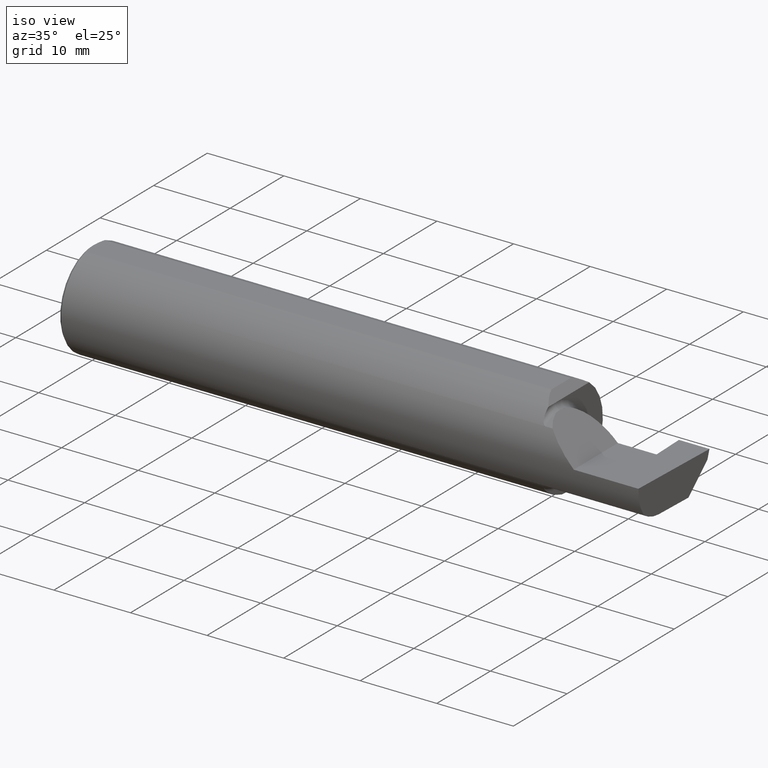
[diagram: clean part render]
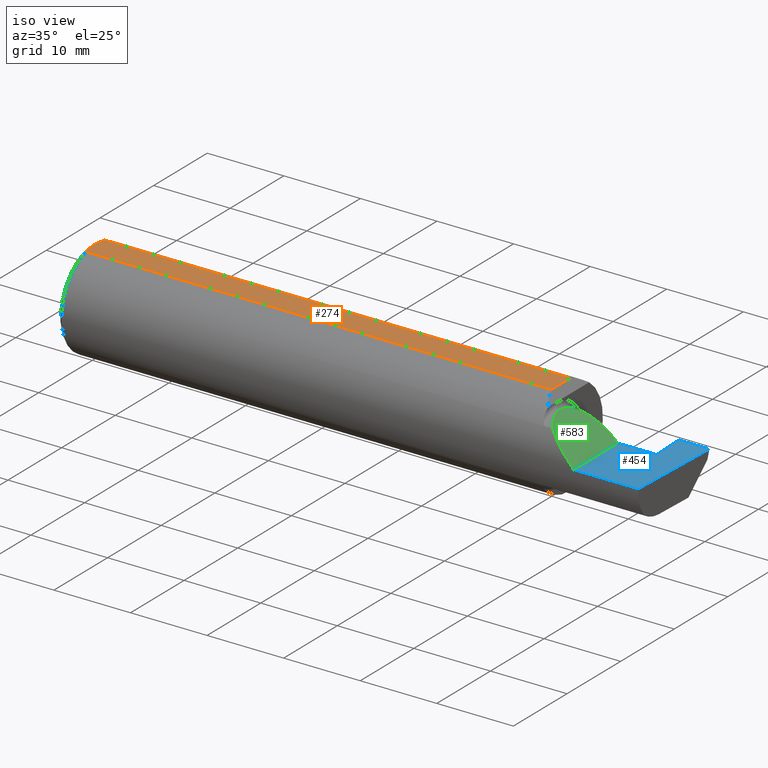
[diagram: same view with three faces highlighted in distinct colors, each labeled with its STEP entity id]
A machine part, iso view with three faces highlighted in distinct colors.
Their STEP definitions:

[orange] entity #274 — the highlighted planar face has unit normal (0, -0, 1).
#14 = LINE ( 'NONE', #353, #471 ) ;
#67 = EDGE_CURVE ( 'NONE', #281, #340, #345, .T. ) ;
#78 = CARTESIAN_POINT ( 'NONE',  ( 0.004999999999999471013, 5.665694022114171174E-17, 0.2398500000000000076 ) ) ;
#87 = DIRECTION ( 'NONE',  ( 1.000000000000000000, 0.000000000000000000, 0.000000000000000000 ) ) ;
#88 = ORIENTED_EDGE ( 'NONE', *, *, #735, .T. ) ;
#97 = DIRECTION ( 'NONE',  ( 0.000000000000000000, -0.000000000000000000, 1.000000000000000000 ) ) ;
#98 = ORIENTED_EDGE ( 'NONE', *, *, #193, .T. ) ;
#130 = CARTESIAN_POINT ( 'NONE',  ( 2.410150000000002013, 0.06997856814768359246, 0.2398500000000000076 ) ) ;
#136 = B_SPLINE_CURVE_WITH_KNOTS ( 'NONE', 3,
 ( #78, #356, #605, #665, #338, #521 ),
 .UNSPECIFIED., .F., .F.,
 ( 4, 2, 4 ),
 ( 0.007845223120669340966, 0.008734561288375079086, 0.009623899456080817205 ),
 .UNSPECIFIED. ) ;
#146 = CARTESIAN_POINT ( 'NONE',  ( 3.000000000000000444, -0.2498499999999999888, 0.2398500000000000076 ) ) ;
#173 = CARTESIAN_POINT ( 'NONE',  ( 0.004999999999999748569, 0.01185123536186986730, 0.2398500000000000354 ) ) ;
#193 = EDGE_CURVE ( 'NONE', #215, #281, #450, .T. ) ;
#210 = EDGE_LOOP ( 'NONE', ( #730, #98, #410, #88, #463 ) ) ;
#215 = VERTEX_POINT ( 'NONE', #130 ) ;
#238 = VECTOR ( 'NONE', #385, 39.37007874015748143 ) ;
#274 = ADVANCED_FACE ( 'NONE', ( #607 ), #339, .T. ) ;
#281 = VERTEX_POINT ( 'NONE', #480 ) ;
#312 = EDGE_CURVE ( 'NONE', #404, #630, #465, .T. ) ;
#321 = CARTESIAN_POINT ( 'NONE',  ( 0.004999999999999471013, 5.665694022114171174E-17, 0.2398500000000000076 ) ) ;
#338 = CARTESIAN_POINT ( 'NONE',  ( 0.01180609504125294286, -0.05857511741890332468, 0.2398500000000000354 ) ) ;
#339 = PLANE ( 'NONE',  #392 ) ;
#340 = VERTEX_POINT ( 'NONE', #354 ) ;
#345 = B_SPLINE_CURVE_WITH_KNOTS ( 'NONE', 3,
 ( #741, #629, #746, #632, #173, #321 ),
 .UNSPECIFIED., .F., .F.,
 ( 4, 2, 4 ),
 ( 0.006064768674679246394, 0.006954995897674293680, 0.007845223120669340966 ),
 .UNSPECIFIED. ) ;
#353 = CARTESIAN_POINT ( 'NONE',  ( 2.410150000000002013, -0.2498499999999999888, 0.2398500000000000076 ) ) ;
#354 = CARTESIAN_POINT ( 'NONE',  ( 0.004999999999999471013, 5.665694022114171174E-17, 0.2398500000000000076 ) ) ;
#356 = CARTESIAN_POINT ( 'NONE',  ( 0.004999999999999737293, -0.01183939972798750233, 0.2398500000000000631 ) ) ;
#385 = DIRECTION ( 'NONE',  ( -1.000000000000000000, -0.000000000000000000, -0.000000000000000000 ) ) ;
#392 = AXIS2_PLACEMENT_3D ( 'NONE', #146, #97, #653 ) ;
#404 = VERTEX_POINT ( 'NONE', #745 ) ;
#410 = ORIENTED_EDGE ( 'NONE', *, *, #67, .T. ) ;
#450 = LINE ( 'NONE', #507, #238 ) ;
#463 = ORIENTED_EDGE ( 'NONE', *, *, #312, .T. ) ;
#465 = LINE ( 'NONE', #714, #708 ) ;
#471 = VECTOR ( 'NONE', #602, 39.37007874015748143 ) ;
#480 = CARTESIAN_POINT ( 'NONE',  ( 0.01499999999999998036, 0.06997856814768359246, 0.2398500000000000076 ) ) ;
#507 = CARTESIAN_POINT ( 'NONE',  ( 0.000000000000000000, 0.06997856814768359246, 0.2398500000000000076 ) ) ;
#521 = CARTESIAN_POINT ( 'NONE',  ( 0.01499999999999999944, -0.06997856814768359246, 0.2398500000000000076 ) ) ;
#602 = DIRECTION ( 'NONE',  ( 0.000000000000000000, -1.000000000000000000, 0.000000000000000000 ) ) ;
#605 = CARTESIAN_POINT ( 'NONE',  ( 0.005880636388018714231, -0.02358947477502553597, 0.2398500000000000354 ) ) ;
#607 = FACE_OUTER_BOUND ( 'NONE', #210, .T. ) ;
#629 = CARTESIAN_POINT ( 'NONE',  ( 0.01181966702888962925, 0.05862357455657477012, 0.2398500000000000631 ) ) ;
#630 = VERTEX_POINT ( 'NONE', #642 ) ;
#632 = CARTESIAN_POINT ( 'NONE',  ( 0.005899890343961325216, 0.02378560009989248020, 0.2398500000000000076 ) ) ;
#642 = CARTESIAN_POINT ( 'NONE',  ( 2.410150000000002013, -0.06997856814768374512, 0.2398500000000000076 ) ) ;
#653 = DIRECTION ( 'NONE',  ( 1.000000000000000000, 0.000000000000000000, -0.000000000000000000 ) ) ;
#665 = CARTESIAN_POINT ( 'NONE',  ( 0.009274236576542584445, -0.04692405468904851940, 0.2398500000000000076 ) ) ;
#708 = VECTOR ( 'NONE', #87, 39.37007874015748143 ) ;
#714 = CARTESIAN_POINT ( 'NONE',  ( 0.000000000000000000, -0.06997856814768359246, 0.2398500000000000076 ) ) ;
#730 = ORIENTED_EDGE ( 'NONE', *, *, #768, .F. ) ;
#735 = EDGE_CURVE ( 'NONE', #340, #404, #136, .T. ) ;
#741 = CARTESIAN_POINT ( 'NONE',  ( 0.01499999999999998036, 0.06997856814768359246, 0.2398500000000000076 ) ) ;
#745 = CARTESIAN_POINT ( 'NONE',  ( 0.01499999999999999944, -0.06997856814768359246, 0.2398500000000000076 ) ) ;
#746 = CARTESIAN_POINT ( 'NONE',  ( 0.009312860630924749139, 0.04712480857212033442, 0.2398500000000000354 ) ) ;
#768 = EDGE_CURVE ( 'NONE', #215, #630, #14, .T. ) ;

[blue] entity #454 — the highlighted planar face has unit normal (-0, 0, -1).
#37 = CARTESIAN_POINT ( 'NONE',  ( 2.843000000000000416, 0.07414999999999999369, 6.735556484410550145E-17 ) ) ;
#56 = CARTESIAN_POINT ( 'NONE',  ( 2.650000000000000355, -0.2498499999999999610, 4.286263797015727350E-17 ) ) ;
#71 = DIRECTION ( 'NONE',  ( 1.000000000000000000, 0.000000000000000000, 0.000000000000000000 ) ) ;
#93 = LINE ( 'NONE', #283, #674 ) ;
#103 = VERTEX_POINT ( 'NONE', #754 ) ;
#107 = CARTESIAN_POINT ( 'NONE',  ( 3.000000000000000444, -0.2500000000000000555, 0.000000000000000000 ) ) ;
#111 = ORIENTED_EDGE ( 'NONE', *, *, #580, .F. ) ;
#122 = DIRECTION ( 'NONE',  ( 0.03487823687994805882, -0.9993915692020550745, -4.023838201466321508E-18 ) ) ;
#140 = ORIENTED_EDGE ( 'NONE', *, *, #777, .F. ) ;
#198 = CARTESIAN_POINT ( 'NONE',  ( 2.860520154598983122, -0.2548677727907585067, 1.708135462159229949E-17 ) ) ;
#206 = VECTOR ( 'NONE', #71, 39.37007874015748143 ) ;
#224 = CARTESIAN_POINT ( 'NONE',  ( 2.650000000000000355, -0.2500000000000000555, 4.286263797015727350E-17 ) ) ;
#248 = DIRECTION ( 'NONE',  ( -1.000000000000000000, 0.000000000000000000, 1.224646799147351482E-16 ) ) ;
#253 = CARTESIAN_POINT ( 'NONE',  ( 3.000000000000000444, 0.2471499999999999531, -7.549931466865102584E-16 ) ) ;
#260 = CARTESIAN_POINT ( 'NONE',  ( 2.849037608447156700, 0.07414999999999992430, -7.830269480060695625E-18 ) ) ;
#262 = EDGE_CURVE ( 'NONE', #352, #441, #266, .T. ) ;
#266 = LINE ( 'NONE', #647, #206 ) ;
#282 = LINE ( 'NONE', #224, #724 ) ;
#283 = CARTESIAN_POINT ( 'NONE',  ( 2.982660284539054629, -0.2493944837933358694, 2.123502703737254632E-18 ) ) ;
#301 = DIRECTION ( 'NONE',  ( -1.224646799147351482E-16, 0.000000000000000000, -1.000000000000000000 ) ) ;
#305 = EDGE_LOOP ( 'NONE', ( #111, #400, #140, #420, #547, #363, #496 ) ) ;
#331 = CARTESIAN_POINT ( 'NONE',  ( 4.499279347985559139E-32, -0.2498499999999999610, 3.673940397442053459E-16 ) ) ;
#350 = EDGE_CURVE ( 'NONE', #616, #428, #93, .T. ) ;
#352 = VERTEX_POINT ( 'NONE', #666 ) ;
#363 = ORIENTED_EDGE ( 'NONE', *, *, #262, .F. ) ;
#400 = ORIENTED_EDGE ( 'NONE', *, *, #350, .T. ) ;
#408 = VECTOR ( 'NONE', #122, 39.37007874015748854 ) ;
#411 = DIRECTION ( 'NONE',  ( -0.000000000000000000, 1.000000000000000000, -0.000000000000000000 ) ) ;
#420 = ORIENTED_EDGE ( 'NONE', *, *, #555, .T. ) ;
#428 = VERTEX_POINT ( 'NONE', #253 ) ;
#433 = PLANE ( 'NONE',  #762 ) ;
#437 = DIRECTION ( 'NONE',  ( 1.000000000000000000, -0.000000000000000000, -0.000000000000000000 ) ) ;
#441 = VERTEX_POINT ( 'NONE', #37 ) ;
#446 = VECTOR ( 'NONE', #722, 39.37007874015748143 ) ;
#454 = ADVANCED_FACE ( 'NONE', ( #679 ), #433, .F. ) ;
#477 = VERTEX_POINT ( 'NONE', #56 ) ;
#496 = ORIENTED_EDGE ( 'NONE', *, *, #723, .F. ) ;
#535 = LINE ( 'NONE', #770, #446 ) ;
#547 = ORIENTED_EDGE ( 'NONE', *, *, #651, .T. ) ;
#555 = EDGE_CURVE ( 'NONE', #103, #621, #646, .T. ) ;
#578 = CARTESIAN_POINT ( 'NONE',  ( 2.982644377562602589, -0.2498499999999999610, 1.813681607540488003E-17 ) ) ;
#580 = EDGE_CURVE ( 'NONE', #616, #477, #760, .T. ) ;
#586 = VECTOR ( 'NONE', #437, 39.37007874015748143 ) ;
#616 = VERTEX_POINT ( 'NONE', #578 ) ;
#621 = VERTEX_POINT ( 'NONE', #260 ) ;
#646 = LINE ( 'NONE', #198, #408 ) ;
#647 = CARTESIAN_POINT ( 'NONE',  ( 2.450000000000000178, 0.07414999999999997982, 6.735557395310432655E-17 ) ) ;
#651 = EDGE_CURVE ( 'NONE', #621, #441, #535, .T. ) ;
#666 = CARTESIAN_POINT ( 'NONE',  ( 2.650000000000000355, 0.07414999999999997982, 4.286263797015727350E-17 ) ) ;
#674 = VECTOR ( 'NONE', #793, 39.37007874015748143 ) ;
#679 = FACE_OUTER_BOUND ( 'NONE', #305, .T. ) ;
#705 = DIRECTION ( 'NONE',  ( -1.000000000000000000, -0.000000000000000000, -0.000000000000000000 ) ) ;
#722 = DIRECTION ( 'NONE',  ( -1.000000000000000000, 2.393920122924607177E-16, 1.224646799147351482E-16 ) ) ;
#723 = EDGE_CURVE ( 'NONE', #477, #352, #282, .T. ) ;
#724 = VECTOR ( 'NONE', #411, 39.37007874015748143 ) ;
#740 = CARTESIAN_POINT ( 'NONE',  ( 2.825000000000000178, 0.2471500000000000086, -3.306546357697639493E-19 ) ) ;
#754 = CARTESIAN_POINT ( 'NONE',  ( 2.843000000000000416, 0.2471500000000000086, -3.306546357697639493E-19 ) ) ;
#760 = LINE ( 'NONE', #331, #763 ) ;
#762 = AXIS2_PLACEMENT_3D ( 'NONE', #107, #301, #248 ) ;
#763 = VECTOR ( 'NONE', #705, 39.37007874015748143 ) ;
#770 = CARTESIAN_POINT ( 'NONE',  ( 3.000000000000000444, 0.07414999999999984104, -9.503126995615065154E-33 ) ) ;
#777 = EDGE_CURVE ( 'NONE', #103, #428, #808, .T. ) ;
#793 = DIRECTION ( 'NONE',  ( 0.03489949670249940794, 0.9993908270190957621, -4.452728370532699971E-18 ) ) ;
#808 = LINE ( 'NONE', #740, #586 ) ;

[green] entity #583 — the highlighted planar face has unit normal (-0.7071, 0, -0.7071).
#15 = CARTESIAN_POINT ( 'NONE',  ( 2.487690731615568307, -0.1771157075472510889, 0.1623092683844330197 ) ) ;
#17 = CARTESIAN_POINT ( 'NONE',  ( 2.475000000000000977, -0.1008499999999999674, 0.1749999999999999889 ) ) ;
#26 = CARTESIAN_POINT ( 'NONE',  ( 2.475000000000001421, -0.1400387324517231857, 0.1750000000000000167 ) ) ;
#51 = ORIENTED_EDGE ( 'NONE', *, *, #124, .F. ) ;
#56 = CARTESIAN_POINT ( 'NONE',  ( 2.650000000000000355, -0.2498499999999999610, 4.286263797015727350E-17 ) ) ;
#74 = CARTESIAN_POINT ( 'NONE',  ( 2.650000000000000355, -0.2498499999999999610, 4.286263797015727350E-17 ) ) ;
#115 = CARTESIAN_POINT ( 'NONE',  ( 2.475000000000000977, -0.1008499999999999674, 0.1749999999999999889 ) ) ;
#124 = EDGE_CURVE ( 'NONE', #672, #352, #320, .T. ) ;
#126 = CARTESIAN_POINT ( 'NONE',  ( 2.511704467739034552, -0.2080850024789292485, 0.1382955322609664139 ) ) ;
#127 = CARTESIAN_POINT ( 'NONE',  ( 2.650000000000000355, 0.07414999999999997982, 4.286263797015727350E-17 ) ) ;
#135 = AXIS2_PLACEMENT_3D ( 'NONE', #387, #753, #191 ) ;
#191 = DIRECTION ( 'NONE',  ( -0.7071067811865454633, 0.000000000000000000, 0.7071067811865495711 ) ) ;
#224 = CARTESIAN_POINT ( 'NONE',  ( 2.650000000000000355, -0.2500000000000000555, 4.286263797015727350E-17 ) ) ;
#244 = EDGE_LOOP ( 'NONE', ( #51, #403, #750, #491 ) ) ;
#255 = CARTESIAN_POINT ( 'NONE',  ( 2.511704467739034552, -0.2080850024789292485, 0.1382955322609664139 ) ) ;
#270 = FACE_OUTER_BOUND ( 'NONE', #244, .T. ) ;
#282 = LINE ( 'NONE', #224, #724 ) ;
#288 = CARTESIAN_POINT ( 'NONE',  ( 2.475000000000000977, -0.1008499999999999674, 0.1749999999999999889 ) ) ;
#320 =( BOUNDED_CURVE ( )  B_SPLINE_CURVE ( 3, ( #115, #815, #330, #127 ),
 .UNSPECIFIED., .F., .F. ) 
 B_SPLINE_CURVE_WITH_KNOTS ( ( 4, 4 ),
 ( 0.000000000000000000, 1.570796326794896558 ),
 .UNSPECIFIED. ) 
 CURVE ( )  GEOMETRIC_REPRESENTATION_ITEM ( )  RATIONAL_B_SPLINE_CURVE ( ( 1.000000000000000000, 0.8047378541243649375, 0.8047378541243649375, 1.000000000000000000 ) ) 
 REPRESENTATION_ITEM ( '' )  );
#330 = CARTESIAN_POINT ( 'NONE',  ( 2.547487373415292744, 0.07414999999999996594, 0.1025126265847083745 ) ) ;
#352 = VERTEX_POINT ( 'NONE', #666 ) ;
#361 = EDGE_CURVE ( 'NONE', #601, #672, #396, .T. ) ;
#387 = CARTESIAN_POINT ( 'NONE',  ( 2.650000000000000355, -0.2500000000000000555, 4.286263797015727350E-17 ) ) ;
#396 =( BOUNDED_CURVE ( )  B_SPLINE_CURVE ( 3, ( #603, #15, #26, #288 ),
 .UNSPECIFIED., .F., .F. ) 
 B_SPLINE_CURVE_WITH_KNOTS ( ( 4, 4 ),
 ( 5.623622464215678463, 6.283185307179586232 ),
 .UNSPECIFIED. ) 
 CURVE ( )  GEOMETRIC_REPRESENTATION_ITEM ( )  RATIONAL_B_SPLINE_CURVE ( ( 1.000000000000000000, 0.9640754331822828371, 0.9640754331822828371, 1.000000000000000000 ) ) 
 REPRESENTATION_ITEM ( '' )  );
#403 = ORIENTED_EDGE ( 'NONE', *, *, #361, .F. ) ;
#411 = DIRECTION ( 'NONE',  ( -0.000000000000000000, 1.000000000000000000, -0.000000000000000000 ) ) ;
#477 = VERTEX_POINT ( 'NONE', #56 ) ;
#491 = ORIENTED_EDGE ( 'NONE', *, *, #723, .T. ) ;
#569 = EDGE_CURVE ( 'NONE', #477, #601, #588, .T. ) ;
#583 = ADVANCED_FACE ( 'NONE', ( #270 ), #757, .F. ) ;
#588 =( BOUNDED_CURVE ( )  B_SPLINE_CURVE ( 3, ( #74, #589, #823, #255 ),
 .UNSPECIFIED., .F., .F. ) 
 B_SPLINE_CURVE_WITH_KNOTS ( ( 4, 4 ),
 ( 4.712388980384689674, 5.298966915116346321 ),
 .UNSPECIFIED. ) 
 CURVE ( )  GEOMETRIC_REPRESENTATION_ITEM ( )  RATIONAL_B_SPLINE_CURVE ( ( 1.000000000000000000, 0.9715321379117538569, 0.9715321379117538569, 1.000000000000000000 ) ) 
 REPRESENTATION_ITEM ( '' )  );
#589 = CARTESIAN_POINT ( 'NONE',  ( 2.600434159100403875, -0.2498499999999999055, 0.04956584089959691769 ) ) ;
#601 = VERTEX_POINT ( 'NONE', #126 ) ;
#603 = CARTESIAN_POINT ( 'NONE',  ( 2.511704467739034552, -0.2080850024789292485, 0.1382955322609664139 ) ) ;
#666 = CARTESIAN_POINT ( 'NONE',  ( 2.650000000000000355, 0.07414999999999997982, 4.286263797015727350E-17 ) ) ;
#672 = VERTEX_POINT ( 'NONE', #17 ) ;
#723 = EDGE_CURVE ( 'NONE', #477, #352, #282, .T. ) ;
#724 = VECTOR ( 'NONE', #411, 39.37007874015748143 ) ;
#750 = ORIENTED_EDGE ( 'NONE', *, *, #569, .F. ) ;
#753 = DIRECTION ( 'NONE',  ( -0.7071067811865495711, 0.000000000000000000, -0.7071067811865454633 ) ) ;
#757 = PLANE ( 'NONE',  #135 ) ;
#815 = CARTESIAN_POINT ( 'NONE',  ( 2.475000000000001421, 0.001662626584708371512, 0.1749999999999999889 ) ) ;
#823 = CARTESIAN_POINT ( 'NONE',  ( 2.552984868485333347, -0.2355204011147992438, 0.09701513151466735485 ) ) ;